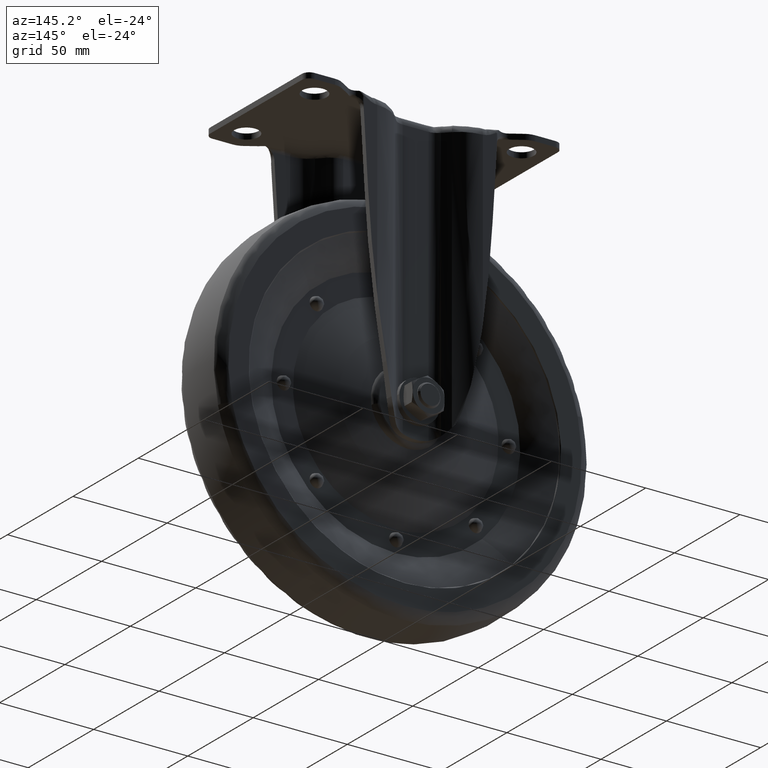
[diagram: clean part render]
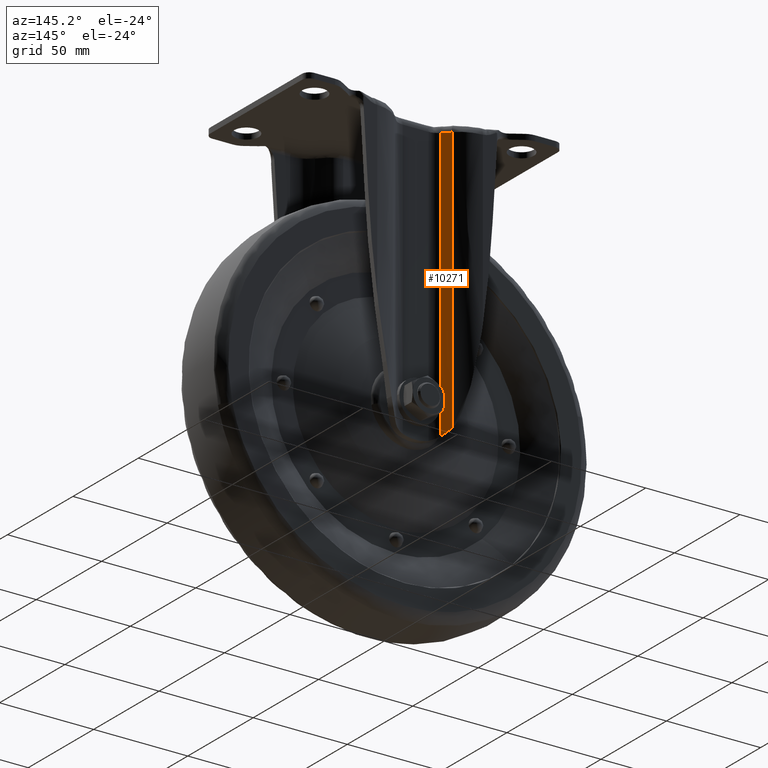
[diagram: same view with one face highlighted and labeled with its STEP entity id]
A machine part, auxiliary view. The second image highlights one B-rep face of the part: STEP entity #10271.
In plain terms, the highlighted face is a freeform B-spline surface patch.
Its self-contained STEP definition (entity closure, byte-faithful):
#8386=CARTESIAN_POINT('',(-15.389059168487449,29.773419564859100,-145.937207517587810));
#8387=VERTEX_POINT('',#8386);
#8403=CARTESIAN_POINT('',(-11.970380122071219,26.323800054896950,-149.423245767180990));
#8404=VERTEX_POINT('',#8403);
#8405=CARTESIAN_POINT('',(-15.389059168487391,29.773419564859211,-145.937207517587810));
#8406=CARTESIAN_POINT('',(-14.873672249200300,29.266750192164640,-146.620599172993200));
#8407=CARTESIAN_POINT('',(-14.326087744155840,28.722525940293082,-147.250699062982900));
#8408=CARTESIAN_POINT('',(-13.607550791123590,27.998400258129831,-147.978824416359090));
#8409=CARTESIAN_POINT('',(-13.462005763873149,27.851246510540559,-148.121576745125510));
#8410=CARTESIAN_POINT('',(-13.168146123325840,27.553122593502799,-148.400711195287700));
#8411=CARTESIAN_POINT('',(-13.020326216962481,27.402655117352801,-148.536632638054900));
#8412=CARTESIAN_POINT('',(-12.574392639177280,26.947166807373051,-148.933972565723790));
#8413=CARTESIAN_POINT('',(-12.273810775040911,26.638065013947571,-149.184983319620900));
#8414=CARTESIAN_POINT('',(-11.970380345084219,26.323799736890319,-149.423245592064800));
#8415=B_SPLINE_CURVE_WITH_KNOTS('',3,(#8405,#8406,#8407,#8408,#8409,#8410,#8411,#8412,#8413,#8414),.UNSPECIFIED.,.F.,.U.,(4,2,2,2,4),(0.0,0.500000000000001,0.625000000000001,0.750000000000000,1.0),.UNSPECIFIED.);
#8416=EDGE_CURVE('',#8387,#8404,#8415,.T.);
#10209=CARTESIAN_POINT('',(-11.970380333498561,26.323799724890801,-4.700000000000000));
#10210=VERTEX_POINT('',#10209);
#10211=CARTESIAN_POINT('',(-11.970380122071219,26.323800054896950,-149.423245767180990));
#10212=CARTESIAN_POINT('',(-11.970380333498561,26.323799724890801,-4.700000000000000));
#10213=QUASI_UNIFORM_CURVE('',1,(#10211,#10212),.UNSPECIFIED.,.F.,.U.);
#10214=EDGE_CURVE('',#8404,#10210,#10213,.T.);
#10233=CARTESIAN_POINT('',(-15.562137456176250,29.943348903985576,-153.041326911360530));
#10234=CARTESIAN_POINT('',(-15.562137456176250,29.943348903985576,-0.991466827215987));
#10235=CARTESIAN_POINT('',(-13.654853190118976,28.073202060512020,-153.041326911360580));
#10236=CARTESIAN_POINT('',(-13.654853190118976,28.073202060512020,-0.991466827215987));
#10237=CARTESIAN_POINT('',(-11.801966905337677,26.149145173782024,-153.041326911360560));
#10238=CARTESIAN_POINT('',(-11.801966905337677,26.149145173782024,-0.991466827215987));
#10246=(BOUNDED_SURFACE()B_SPLINE_SURFACE(1,2,((#10233,#10235,#10237),(#10234,#10236,#10238)),.UNSPECIFIED.,.F.,.F.,.U.)B_SPLINE_SURFACE_WITH_KNOTS((2,2),(3,3),(0.0,152.049860084144600),(1.213149638724327,6.555865196633339),.UNSPECIFIED.)GEOMETRIC_REPRESENTATION_ITEM()RATIONAL_B_SPLINE_SURFACE(((0.999851789414742,0.999592304294743,0.999538302604567),(0.999851789414742,0.999592304294743,0.999538302604567)))REPRESENTATION_ITEM('')SURFACE());
#10247=CARTESIAN_POINT('',(-15.389059408960451,29.773418890170149,-4.700000000000000));
#10248=VERTEX_POINT('',#10247);
#10249=CARTESIAN_POINT('',(-15.389059168487449,29.773419564859100,-145.937207517587810));
#10250=CARTESIAN_POINT('',(-15.389059408960451,29.773418890170149,-4.700000000000000));
#10251=QUASI_UNIFORM_CURVE('',1,(#10249,#10250),.UNSPECIFIED.,.F.,.U.);
#10252=EDGE_CURVE('',#8387,#10248,#10251,.T.);
#10253=ORIENTED_EDGE('',*,*,#10252,.T.);
#10254=CARTESIAN_POINT('',(-15.389059408960451,29.773418890170149,-4.700000000000000));
#10255=CARTESIAN_POINT('',(-13.657237057699394,28.070890469736447,-4.700000000000000));
#10256=CARTESIAN_POINT('',(-11.970380333498509,26.323799724890890,-4.700000000000000));
#10264=(BOUNDED_CURVE()B_SPLINE_CURVE(2,(#10254,#10255,#10256),.UNSPECIFIED.,.F.,.U.)CURVE()GEOMETRIC_REPRESENTATION_ITEM()QUASI_UNIFORM_CURVE()RATIONAL_B_SPLINE_CURVE((1.0,0.999915057555377,1.0))REPRESENTATION_ITEM(''));
#10265=EDGE_CURVE('',#10248,#10210,#10264,.T.);
#10266=ORIENTED_EDGE('',*,*,#10265,.T.);
#10267=ORIENTED_EDGE('',*,*,#10214,.F.);
#10268=ORIENTED_EDGE('',*,*,#8416,.F.);
#10269=EDGE_LOOP('',(#10253,#10266,#10267,#10268));
#10270=FACE_OUTER_BOUND('',#10269,.T.);
#10271=ADVANCED_FACE('',(#10270),#10246,.T.);